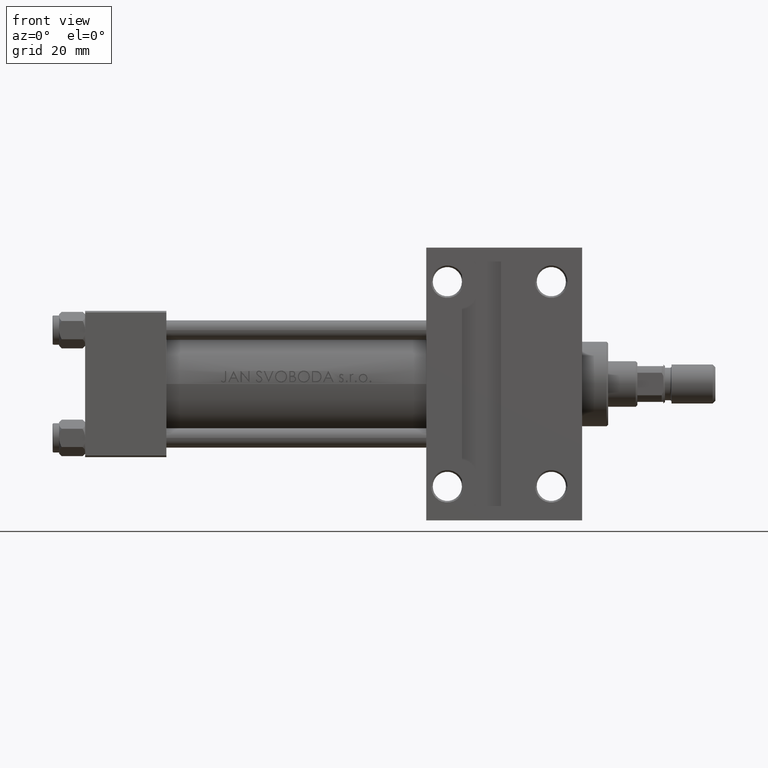
[diagram: clean part render]
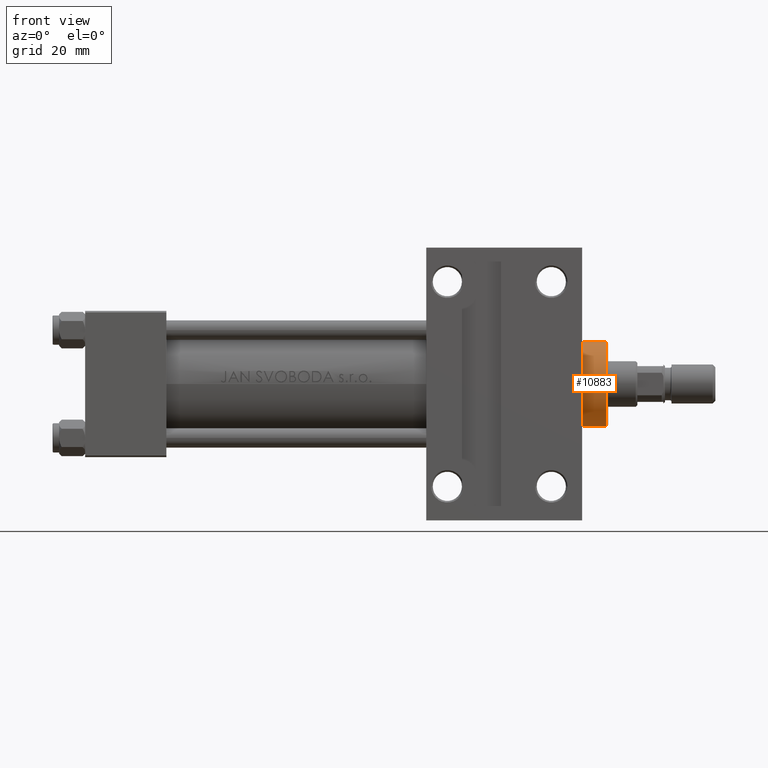
[diagram: same view with one face highlighted and labeled with its STEP entity id]
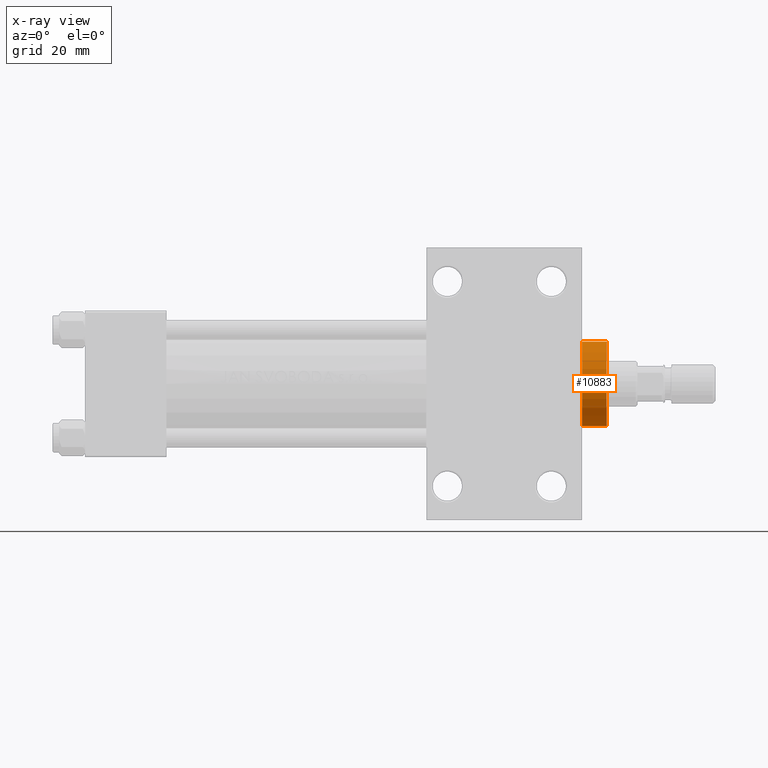
[diagram: x-ray of the same camera — body ghosted, the highlighted face saturated]
A machine part, front view. The second image highlights one B-rep face of the part: STEP entity #10883.
The next image is the same camera in x-ray: the body ghosted, the highlighted face saturated — about 0% of this face is hidden behind the body in this view.
In plain terms, the highlighted cylindrical surface (partial cylindrical patch) has radius 13 mm, axis along (-1, 0, 0).
Its self-contained STEP definition (entity closure, byte-faithful):
#167 = EDGE_CURVE ( 'NONE', #10970, #29977, #38626, .T. ) ;
#1515 = CARTESIAN_POINT ( 'NONE',  ( 13.00000000000000178, 1.592040838891559293E-15, 36.69999999999999574 ) ) ;
#2137 = CIRCLE ( 'NONE', #21616, 13.00000000000000178 ) ;
#3025 = EDGE_LOOP ( 'NONE', ( #42466, #6620, #18230, #41070 ) ) ;
#4309 = CARTESIAN_POINT ( 'NONE',  ( 13.00000000000000178, 1.592040838891559293E-15, 28.69999999999999929 ) ) ;
#4557 = DIRECTION ( 'NONE',  ( 1.000000000000000000, 0.000000000000000000, 0.000000000000000000 ) ) ;
#6192 = VERTEX_POINT ( 'NONE', #10607 ) ;
#6620 = ORIENTED_EDGE ( 'NONE', *, *, #35282, .T. ) ;
#6710 = AXIS2_PLACEMENT_3D ( 'NONE', #10989, #10742, #25614 ) ;
#9163 = EDGE_CURVE ( 'NONE', #6192, #40819, #2137, .T. ) ;
#10607 = CARTESIAN_POINT ( 'NONE',  ( -13.00000000000000178, 0.000000000000000000, 36.20000000000000995 ) ) ;
#10742 = DIRECTION ( 'NONE',  ( 0.000000000000000000, 0.000000000000000000, 1.000000000000000000 ) ) ;
#10883 = ADVANCED_FACE ( 'NONE', ( #40370 ), #32342, .T. ) ;
#10970 = VERTEX_POINT ( 'NONE', #4309 ) ;
#10989 = CARTESIAN_POINT ( 'NONE',  ( 0.000000000000000000, 0.000000000000000000, 28.69999999999999929 ) ) ;
#11625 = DIRECTION ( 'NONE',  ( 0.000000000000000000, 0.000000000000000000, -1.000000000000000000 ) ) ;
#15337 = EDGE_CURVE ( 'NONE', #6192, #29977, #38102, .T. ) ;
#15725 = CARTESIAN_POINT ( 'NONE',  ( 13.00000000000000178, 1.592040838891559293E-15, 36.20000000000000995 ) ) ;
#16860 = DIRECTION ( 'NONE',  ( -0.000000000000000000, -0.000000000000000000, -1.000000000000000000 ) ) ;
#17753 = LINE ( 'NONE', #1515, #46490 ) ;
#18230 = ORIENTED_EDGE ( 'NONE', *, *, #167, .T. ) ;
#21616 = AXIS2_PLACEMENT_3D ( 'NONE', #37691, #11625, #4557 ) ;
#25614 = DIRECTION ( 'NONE',  ( 1.000000000000000000, 0.000000000000000000, 0.000000000000000000 ) ) ;
#27065 = CARTESIAN_POINT ( 'NONE',  ( -13.00000000000000178, 0.000000000000000000, 28.69999999999999929 ) ) ;
#29977 = VERTEX_POINT ( 'NONE', #27065 ) ;
#32342 = CYLINDRICAL_SURFACE ( 'NONE', #33342, 13.00000000000000178 ) ;
#32710 = VECTOR ( 'NONE', #35392, 1000.000000000000000 ) ;
#32834 = CARTESIAN_POINT ( 'NONE',  ( 0.000000000000000000, 0.000000000000000000, 36.69999999999999574 ) ) ;
#33342 = AXIS2_PLACEMENT_3D ( 'NONE', #32834, #43533, #36466 ) ;
#35282 = EDGE_CURVE ( 'NONE', #40819, #10970, #17753, .T. ) ;
#35392 = DIRECTION ( 'NONE',  ( -0.000000000000000000, -0.000000000000000000, -1.000000000000000000 ) ) ;
#36466 = DIRECTION ( 'NONE',  ( -1.000000000000000000, 0.000000000000000000, 0.000000000000000000 ) ) ;
#37691 = CARTESIAN_POINT ( 'NONE',  ( 0.000000000000000000, 0.000000000000000000, 36.20000000000000995 ) ) ;
#38102 = LINE ( 'NONE', #42220, #32710 ) ;
#38626 = CIRCLE ( 'NONE', #6710, 13.00000000000000178 ) ;
#40370 = FACE_OUTER_BOUND ( 'NONE', #3025, .T. ) ;
#40819 = VERTEX_POINT ( 'NONE', #15725 ) ;
#41070 = ORIENTED_EDGE ( 'NONE', *, *, #15337, .F. ) ;
#42220 = CARTESIAN_POINT ( 'NONE',  ( -13.00000000000000178, 0.000000000000000000, 36.69999999999999574 ) ) ;
#42466 = ORIENTED_EDGE ( 'NONE', *, *, #9163, .T. ) ;
#43533 = DIRECTION ( 'NONE',  ( -0.000000000000000000, -0.000000000000000000, -1.000000000000000000 ) ) ;
#46490 = VECTOR ( 'NONE', #16860, 1000.000000000000000 ) ;